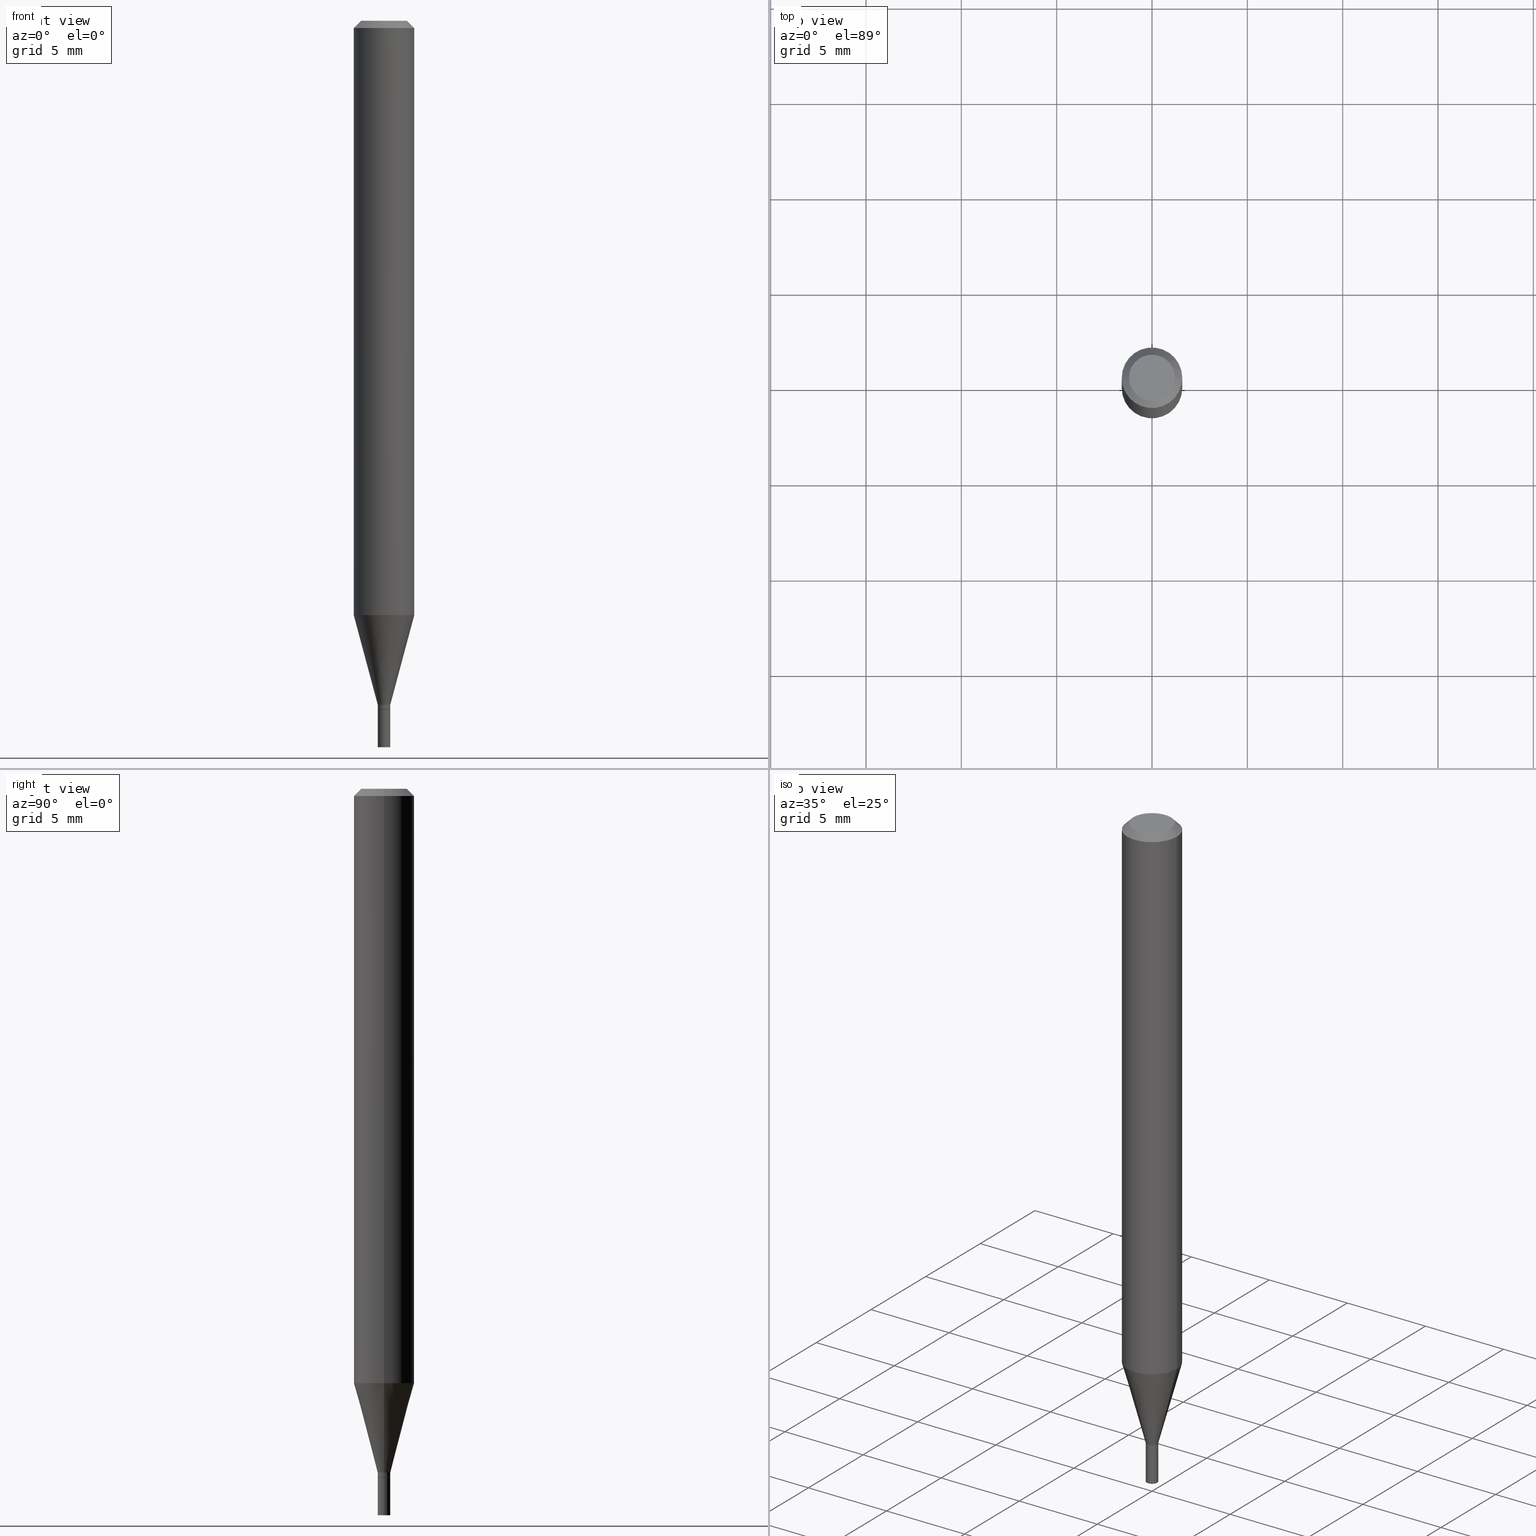
[diagram: canonical four-view strip — front | top / right | iso, engineering-drawing reading convention]
A machine part, canonical four-view strip (front | top / right | iso — engineering-drawing reading convention). The complete STEP part file that produces these views, byte-faithful:
ISO-10303-21;
HEADER;
FILE_DESCRIPTION (( 'STEP AP203' ),
    '1' );
FILE_NAME ('00832.STEP',
    '2024-03-19T22:36:43',
    ( '' ),
    ( '' ),
    'SwSTEP 2.0',
    'SolidWorks 2023',
    '' );
FILE_SCHEMA (( 'CONFIG_CONTROL_DESIGN' ));
ENDSEC;

DATA;
#1 = CYLINDRICAL_SURFACE ( 'NONE', #51, 0.01299999999999999767 ) ;
#2 = DIRECTION ( 'NONE',  ( -2.445468806185136597E-29, 3.491481338843145583E-15, 1.000000000000000000 ) ) ;
#3 = ADVANCED_FACE ( 'NONE', ( #278 ), #452, .T. ) ;
#4 = AXIS2_PLACEMENT_3D ( 'NONE', #72, #174, #390 ) ;
#5 = DATE_AND_TIME ( #40, #186 ) ;
#6 = DIRECTION ( 'NONE',  ( 0.7071067811865411334, -7.319954787623233957E-15, -0.7071067811865537900 ) ) ;
#7 = CARTESIAN_POINT ( 'NONE',  ( 0.01299999999999999767, -5.055664978644874706E-15, -1.421999999999999931 ) ) ;
#8 = SHAPE_DEFINITION_REPRESENTATION ( #43, #314 ) ;
#9 = DIRECTION ( 'NONE',  ( -2.438088387897960049E-29, 3.491481338843145188E-15, 1.000000000000000000 ) ) ;
#10 =( GEOMETRIC_REPRESENTATION_CONTEXT ( 3 ) GLOBAL_UNCERTAINTY_ASSIGNED_CONTEXT ( ( #281 ) ) GLOBAL_UNIT_ASSIGNED_CONTEXT ( ( #202, #99, #417 ) ) REPRESENTATION_CONTEXT ( 'NONE', 'WORKASPACE' ) );
#11 = CARTESIAN_POINT ( 'NONE',  ( -6.641529175093299695E-45, 9.482343474417248123E-31, 2.715851111367844914E-16 ) ) ;
#12 = ORIENTED_EDGE ( 'NONE', *, *, #29, .T. ) ;
#13 = DIRECTION ( 'NONE',  ( -2.445468806185136877E-29, 3.491481338843145188E-15, 1.000000000000000000 ) ) ;
#14 = VERTEX_POINT ( 'NONE', #245 ) ;
#15 = EDGE_CURVE ( 'NONE', #169, #306, #198, .T. ) ;
#16 = DIRECTION ( 'NONE',  ( -2.445468806185136597E-29, 3.491481338843145583E-15, 1.000000000000000000 ) ) ;
#17 = ORIENTED_EDGE ( 'NONE', *, *, #89, .T. ) ;
#18 = DIMENSIONAL_EXPONENTS ( 1.000000000000000000, 0.000000000000000000, 0.000000000000000000, 0.000000000000000000, 0.000000000000000000, 0.000000000000000000, 0.000000000000000000 ) ;
#19 = ADVANCED_FACE ( 'NONE', ( #107 ), #319, .T. ) ;
#20 = CONICAL_SURFACE ( 'NONE', #436, 0.06250000000000000000, 0.7853981633974393972 ) ;
#21 = LINE ( 'NONE', #90, #152 ) ;
#22 = ORIENTED_EDGE ( 'NONE', *, *, #433, .F. ) ;
#23 = DIRECTION ( 'NONE',  ( -2.445468806185136597E-29, 3.491481338843145583E-15, 1.000000000000000000 ) ) ;
#24 = EDGE_LOOP ( 'NONE', ( #344, #60, #12, #349 ) ) ;
#25 = DIRECTION ( 'NONE',  ( -2.445468806185136597E-29, 3.491481338843145583E-15, 1.000000000000000000 ) ) ;
#26 = ADVANCED_FACE ( 'NONE', ( #110 ), #65, .F. ) ;
#27 = DATE_AND_TIME ( #345, #431 ) ;
#28 = VECTOR ( 'NONE', #372, 39.37007874015748854 ) ;
#29 = EDGE_CURVE ( 'NONE', #460, #62, #248, .T. ) ;
#30 = DIRECTION ( 'NONE',  ( -2.445468806185136597E-29, 3.491481338843145583E-15, 1.000000000000000000 ) ) ;
#31 = CARTESIAN_POINT ( 'NONE',  ( 3.453001954333413314E-29, -4.929971650446521716E-15, -1.412000000000000144 ) ) ;
#32 = CARTESIAN_POINT ( 'NONE',  ( 0.06250000000000000000, -4.364351673553916694E-16, 3.047610484872459871E-30 ) ) ;
#33 = DIRECTION ( 'NONE',  ( -2.445468806185136597E-29, 3.491481338843145583E-15, 1.000000000000000000 ) ) ;
#34 = DIRECTION ( 'NONE',  ( -2.445468806185136877E-29, 3.491481338843145188E-15, 1.000000000000000000 ) ) ;
#35 = CALENDAR_DATE ( 2024, 19, 3 ) ;
#36 = AXIS2_PLACEMENT_3D ( 'NONE', #155, #257, #326 ) ;
#37 = DIRECTION ( 'NONE',  ( 1.000000000000000000, -6.982962677686295110E-15, 0.000000000000000000 ) ) ;
#38 = AXIS2_PLACEMENT_3D ( 'NONE', #357, #39, #182 ) ;
#39 = DIRECTION ( 'NONE',  ( -2.445468806185136597E-29, 3.491481338843145583E-15, 1.000000000000000000 ) ) ;
#40 = CALENDAR_DATE ( 2024, 19, 3 ) ;
#41 = DIRECTION ( 'NONE',  ( 1.000000000000000000, -6.982962677686266711E-15, 0.000000000000000000 ) ) ;
#42 = EDGE_CURVE ( 'NONE', #112, #169, #309, .T. ) ;
#43 = PRODUCT_DEFINITION_SHAPE ( 'NONE', 'NONE',  #399 ) ;
#44 = CARTESIAN_POINT ( 'NONE',  ( 0.000000000000000000, 0.000000000000000000, 0.000000000000000000 ) ) ;
#45 = VECTOR ( 'NONE', #386, 39.37007874015748143 ) ;
#46 = VECTOR ( 'NONE', #396, 39.37007874015748143 ) ;
#47 = COORDINATED_UNIVERSAL_TIME_OFFSET ( 5, 0, .BEHIND. ) ;
#48 = CARTESIAN_POINT ( 'NONE',  ( 3.477456642395264859E-29, -4.964886463834953365E-15, -1.421999999999999931 ) ) ;
#49 = FACE_OUTER_BOUND ( 'NONE', #354, .T. ) ;
#50 = DIRECTION ( 'NONE',  ( -2.445468806185136597E-29, 3.491481338843145583E-15, 1.000000000000000000 ) ) ;
#51 = AXIS2_PLACEMENT_3D ( 'NONE', #44, #435, #118 ) ;
#52 = DIRECTION ( 'NONE',  ( 1.000000000000000000, -6.982962677686299843E-15, 0.000000000000000000 ) ) ;
#53 = EDGE_LOOP ( 'NONE', ( #405, #394, #203, #260 ) ) ;
#54 = DIRECTION ( 'NONE',  ( -2.445468806185136597E-29, 3.491481338843145583E-15, 1.000000000000000000 ) ) ;
#55 = EDGE_CURVE ( 'NONE', #201, #75, #383, .T. ) ;
#56 = ORIENTED_EDGE ( 'NONE', *, *, #282, .F. ) ;
#57 = DIRECTION ( 'NONE',  ( -2.445468806185136597E-29, 3.491481338843145583E-15, 1.000000000000000000 ) ) ;
#58 = AXIS2_PLACEMENT_3D ( 'NONE', #335, #16, #303 ) ;
#59 = DIRECTION ( 'NONE',  ( -1.000000000000000000, 6.982962677686265922E-15, -4.876176775795935793E-29 ) ) ;
#60 = ORIENTED_EDGE ( 'NONE', *, *, #455, .T. ) ;
#61 = PERSON_AND_ORGANIZATION_ROLE ( 'creator' ) ;
#62 = VERTEX_POINT ( 'NONE', #177 ) ;
#63 = EDGE_CURVE ( 'NONE', #75, #87, #207, .T. ) ;
#64 = COORDINATED_UNIVERSAL_TIME_OFFSET ( 5, 0, .BEHIND. ) ;
#65 = PLANE ( 'NONE',  #423 ) ;
#66 = DATE_TIME_ROLE ( 'creation_date' ) ;
#67 = LOCAL_TIME ( 18, 36, 43.00000000000000000, #139 ) ;
#68 = CYLINDRICAL_SURFACE ( 'NONE', #400, 0.01299999999999992134 ) ;
#69 = MECHANICAL_CONTEXT ( 'NONE', #358, 'mechanical' ) ;
#70 = CARTESIAN_POINT ( 'NONE',  ( 3.477456642395264859E-29, -4.964886463834953365E-15, -1.421999999999999931 ) ) ;
#71 = PRODUCT_RELATED_PRODUCT_CATEGORY ( 'detail', '', ( #415 ) ) ;
#72 = CARTESIAN_POINT ( 'NONE',  ( 0.000000000000000000, 0.000000000000000000, 0.000000000000000000 ) ) ;
#73 = ORIENTED_EDGE ( 'NONE', *, *, #215, .F. ) ;
#74 = MANIFOLD_SOLID_BREP ( 'Body-Move/Copy2[2]', #329 ) ;
#75 = VERTEX_POINT ( 'NONE', #283 ) ;
#76 = AXIS2_PLACEMENT_3D ( 'NONE', #150, #9, #79 ) ;
#77 = ADVANCED_FACE ( 'NONE', ( #422 ), #68, .T. ) ;
#78 = DIRECTION ( 'NONE',  ( 1.000000000000000000, -6.982962677686258822E-15, 0.000000000000000000 ) ) ;
#79 = DIRECTION ( 'NONE',  ( 1.000000000000000000, -6.982962677686265922E-15, 4.876176775795935793E-29 ) ) ;
#80 = CARTESIAN_POINT ( 'NONE',  ( -0.01299999999999992134, -4.870770167516720333E-15, -1.421500000000000208 ) ) ;
#81 = AXIS2_PLACEMENT_3D ( 'NONE', #206, #458, #391 ) ;
#82 = AXIS2_PLACEMENT_3D ( 'NONE', #132, #261, #408 ) ;
#83 = APPROVAL_PERSON_ORGANIZATION ( #119, #250, #218 ) ;
#84 = CARTESIAN_POINT ( 'NONE',  ( -0.01249999999999999896, -4.876068621864941157E-15, -1.421999999999999931 ) ) ;
#85 = DIRECTION ( 'NONE',  ( -2.438088387897960049E-29, 3.491481338843145188E-15, 1.000000000000000000 ) ) ;
#86 = CARTESIAN_POINT ( 'NONE',  ( -0.01299999999999999767, -5.008683680401023059E-15, -1.500000000000000222 ) ) ;
#87 = VERTEX_POINT ( 'NONE', #392 ) ;
#88 = APPROVAL_PERSON_ORGANIZATION ( #384, #385, #277 ) ;
#89 = EDGE_CURVE ( 'NONE', #306, #169, #337, .T. ) ;
#90 = CARTESIAN_POINT ( 'NONE',  ( -0.01299999999999999767, 9.237055564881300760E-17, -6.394615617331376928E-31 ) ) ;
#91 = ORIENTED_EDGE ( 'NONE', *, *, #15, .T. ) ;
#92 = CARTESIAN_POINT ( 'NONE',  ( 3.477456642395264859E-29, -4.964886463834953365E-15, -1.421999999999999931 ) ) ;
#93 = ORIENTED_EDGE ( 'NONE', *, *, #282, .T. ) ;
#94 = DIRECTION ( 'NONE',  ( -2.445468806185136597E-29, 3.491481338843145583E-15, 1.000000000000000000 ) ) ;
#95 = VERTEX_POINT ( 'NONE', #80 ) ;
#96 = CIRCLE ( 'NONE', #388, 0.06250000000000000000 ) ;
#97 = VECTOR ( 'NONE', #461, 39.37007874015748143 ) ;
#98 = APPROVAL_PERSON_ORGANIZATION ( #176, #300, #280 ) ;
#99 =( NAMED_UNIT ( * ) PLANE_ANGLE_UNIT ( ) SI_UNIT ( $, .RADIAN. ) );
#100 = EDGE_LOOP ( 'NONE', ( #269, #424, #230, #195 ) ) ;
#101 = APPROVAL_STATUS ( 'not_yet_approved' ) ;
#102 = EDGE_LOOP ( 'NONE', ( #144, #147, #297, #131 ) ) ;
#103 = ORIENTED_EDGE ( 'NONE', *, *, #323, .T. ) ;
#104 = AXIS2_PLACEMENT_3D ( 'NONE', #420, #284, #316 ) ;
#105 = CIRCLE ( 'NONE', #330, 0.01249999999999999896 ) ;
#106 = CC_DESIGN_PERSON_AND_ORGANIZATION_ASSIGNMENT ( #108, #210, ( #363 ) ) ;
#107 = FACE_OUTER_BOUND ( 'NONE', #53, .T. ) ;
#108 = PERSON_AND_ORGANIZATION ( #292, #115 ) ;
#109 = DESIGN_CONTEXT ( 'detailed design', #381, 'design' ) ;
#110 = FACE_OUTER_BOUND ( 'NONE', #343, .T. ) ;
#111 = APPROVAL_DATE_TIME ( #188, #250 ) ;
#112 = VERTEX_POINT ( 'NONE', #217 ) ;
#113 = EDGE_CURVE ( 'NONE', #112, #375, #262, .T. ) ;
#114 = CARTESIAN_POINT ( 'NONE',  ( -0.01299999999999992134, -4.837601094797709398E-15, -1.412000000000000144 ) ) ;
#115 = ORGANIZATION ( 'UNSPECIFIED', 'UNSPECIFIED', '' ) ;
#116 = EDGE_CURVE ( 'NONE', #14, #460, #403, .T. ) ;
#117 = DIRECTION ( 'NONE',  ( 0.2588190451025207950, 1.565188264969625912E-15, 0.9659258262890682012 ) ) ;
#118 = DIRECTION ( 'NONE',  ( 1.000000000000000000, -6.982962677686267499E-15, 4.876176775795935793E-29 ) ) ;
#119 = PERSON_AND_ORGANIZATION ( #292, #115 ) ;
#120 = LINE ( 'NONE', #84, #46 ) ;
#121 = CIRCLE ( 'NONE', #82, 0.06250000000000000000 ) ;
#122 = DIRECTION ( 'NONE',  ( -2.445468806185136597E-29, 3.491481338843145583E-15, 1.000000000000000000 ) ) ;
#123 = CARTESIAN_POINT ( 'NONE',  ( 3.668203209277705088E-31, -5.237222008264718399E-17, -0.01499999999999999944 ) ) ;
#124 = ORIENTED_EDGE ( 'NONE', *, *, #447, .F. ) ;
#125 = ADVANCED_FACE ( 'NONE', ( #49 ), #223, .T. ) ;
#126 = FACE_OUTER_BOUND ( 'NONE', #334, .T. ) ;
#127 = ORIENTED_EDGE ( 'NONE', *, *, #116, .F. ) ;
#128 = AXIS2_PLACEMENT_3D ( 'NONE', #322, #254, #291 ) ;
#129 = AXIS2_PLACEMENT_3D ( 'NONE', #445, #234, #450 ) ;
#130 = DIRECTION ( 'NONE',  ( -1.000000000000000000, 6.982962677686266711E-15, 0.000000000000000000 ) ) ;
#131 = ORIENTED_EDGE ( 'NONE', *, *, #369, .F. ) ;
#132 = CARTESIAN_POINT ( 'NONE',  ( 3.001234569599529890E-29, -4.284967555809580668E-15, -1.227263485025340550 ) ) ;
#133 = ORIENTED_EDGE ( 'NONE', *, *, #42, .F. ) ;
#134 = CARTESIAN_POINT ( 'NONE',  ( 3.477456642395264859E-29, -4.964886463834953365E-15, -1.421999999999999931 ) ) ;
#135 = CC_DESIGN_PERSON_AND_ORGANIZATION_ASSIGNMENT ( #426, #348, ( #356 ) ) ;
#136 = EDGE_LOOP ( 'NONE', ( #466, #93, #271, #170 ) ) ;
#137 = CLOSED_SHELL ( 'NONE', ( #235, #253, #393, #26 ) ) ;
#138 = AXIS2_PLACEMENT_3D ( 'NONE', #320, #185, #78 ) ;
#139 = COORDINATED_UNIVERSAL_TIME_OFFSET ( 5, 0, .BEHIND. ) ;
#140 = CARTESIAN_POINT ( 'NONE',  ( 0.01299999999999992134, -9.077851480992092194E-17, 6.339029808534677610E-31 ) ) ;
#141 = ORIENTED_EDGE ( 'NONE', *, *, #55, .F. ) ;
#142 = CC_DESIGN_DATE_AND_TIME_ASSIGNMENT ( #453, #66, ( #399 ) ) ;
#143 = PERSON_AND_ORGANIZATION ( #292, #115 ) ;
#144 = ORIENTED_EDGE ( 'NONE', *, *, #429, .F. ) ;
#145 = CIRCLE ( 'NONE', #318, 0.01299999999999992134 ) ;
#146 = CALENDAR_DATE ( 2024, 19, 3 ) ;
#147 = ORIENTED_EDGE ( 'NONE', *, *, #215, .T. ) ;
#148 = APPLICATION_PROTOCOL_DEFINITION ( 'international standard', 'config_control_design', 1994, #358 ) ;
#149 = CARTESIAN_POINT ( 'NONE',  ( 3.477456642395264859E-29, -4.964886463834953365E-15, -1.421999999999999931 ) ) ;
#150 = CARTESIAN_POINT ( 'NONE',  ( 3.584916967085606921E-29, -5.356492647442320375E-15, -1.500000000000000222 ) ) ;
#151 = DIRECTION ( 'NONE',  ( 1.000000000000000000, -6.982962677686267499E-15, 4.852736867747366768E-29 ) ) ;
#152 = VECTOR ( 'NONE', #229, 39.37007874015748143 ) ;
#153 = CARTESIAN_POINT ( 'NONE',  ( -0.01299999999999992134, -4.339239720378613725E-15, -1.412000000000000144 ) ) ;
#154 = EDGE_CURVE ( 'NONE', #62, #201, #402, .T. ) ;
#155 = CARTESIAN_POINT ( 'NONE',  ( 0.000000000000000000, 0.000000000000000000, 0.000000000000000000 ) ) ;
#156 = CARTESIAN_POINT ( 'NONE',  ( -0.04749999999999999362, 3.578768372314215436E-16, 2.715851111367820755E-16 ) ) ;
#157 = AXIS2_PLACEMENT_3D ( 'NONE', #463, #25, #211 ) ;
#158 = FACE_OUTER_BOUND ( 'NONE', #380, .T. ) ;
#159 = ORIENTED_EDGE ( 'NONE', *, *, #15, .F. ) ;
#160 = DIRECTION ( 'NONE',  ( 1.000000000000000000, -6.982962677686270655E-15, 0.000000000000000000 ) ) ;
#161 = ORIENTED_EDGE ( 'NONE', *, *, #421, .F. ) ;
#162 = CARTESIAN_POINT ( 'NONE',  ( 3.453001954333413314E-29, -4.929971650446521716E-15, -1.412000000000000144 ) ) ;
#163 = VERTEX_POINT ( 'NONE', #153 ) ;
#164 = VECTOR ( 'NONE', #13, 39.37007874015748143 ) ;
#165 = ADVANCED_FACE ( 'NONE', ( #328 ), #416, .T. ) ;
#166 = LINE ( 'NONE', #270, #28 ) ;
#167 = EDGE_LOOP ( 'NONE', ( #411, #312, #22, #127 ) ) ;
#168 = PLANE ( 'NONE',  #347 ) ;
#169 = VERTEX_POINT ( 'NONE', #7 ) ;
#170 = ORIENTED_EDGE ( 'NONE', *, *, #154, .F. ) ;
#171 = APPROVAL_DATE_TIME ( #27, #300 ) ;
#172 = ORIENTED_EDGE ( 'NONE', *, *, #89, .F. ) ;
#173 = EDGE_CURVE ( 'NONE', #87, #75, #96, .T. ) ;
#174 = DIRECTION ( 'NONE',  ( 0.000000000000000000, 0.000000000000000000, 1.000000000000000000 ) ) ;
#175 = CARTESIAN_POINT ( 'NONE',  ( 0.000000000000000000, 0.000000000000000000, 0.000000000000000000 ) ) ;
#176 = PERSON_AND_ORGANIZATION ( #292, #115 ) ;
#177 = CARTESIAN_POINT ( 'NONE',  ( 0.01299999999999992134, -5.020750165256443057E-15, -1.412000000000000144 ) ) ;
#178 = VECTOR ( 'NONE', #252, 39.37007874015748854 ) ;
#179 =( LENGTH_UNIT ( ) NAMED_UNIT ( * ) SI_UNIT ( $, .METRE. ) );
#180 = ORIENTED_EDGE ( 'NONE', *, *, #181, .F. ) ;
#181 = EDGE_CURVE ( 'NONE', #242, #14, #231, .T. ) ;
#182 = DIRECTION ( 'NONE',  ( 1.000000000000000000, -6.982962677686295110E-15, 0.000000000000000000 ) ) ;
#183 = CARTESIAN_POINT ( 'NONE',  ( 0.06250000000000000000, -4.811533449433679005E-16, -0.01499999999999999944 ) ) ;
#184 = CONICAL_SURFACE ( 'NONE', #362, 0.01249999999999999896, 0.7853981633974718157 ) ;
#185 = DIRECTION ( 'NONE',  ( -2.445468806185136597E-29, 3.491481338843145583E-15, 1.000000000000000000 ) ) ;
#186 = LOCAL_TIME ( 18, 36, 43.00000000000000000, #47 ) ;
#187 = CC_DESIGN_PERSON_AND_ORGANIZATION_ASSIGNMENT ( #353, #61, ( #399 ) ) ;
#188 = DATE_AND_TIME ( #364, #224 ) ;
#189 = DIRECTION ( 'NONE',  ( 1.000000000000000000, -6.982962677686258822E-15, 0.000000000000000000 ) ) ;
#190 = DIRECTION ( 'NONE',  ( -2.445468806185136597E-29, 3.491481338843145583E-15, 1.000000000000000000 ) ) ;
#191 = DIRECTION ( 'NONE',  ( -2.445468806185136597E-29, 3.491481338843145583E-15, 1.000000000000000000 ) ) ;
#192 = CARTESIAN_POINT ( 'NONE',  ( -0.06250000000000000000, 4.440892098500626162E-16, -3.074334431409316114E-30 ) ) ;
#193 = VERTEX_POINT ( 'NONE', #365 ) ;
#194 = DIRECTION ( 'NONE',  ( 1.000000000000000000, -6.982962677686265922E-15, 4.876176775795935793E-29 ) ) ;
#195 = ORIENTED_EDGE ( 'NONE', *, *, #173, .F. ) ;
#196 = CYLINDRICAL_SURFACE ( 'NONE', #324, 0.01299999999999999767 ) ;
#197 = ORIENTED_EDGE ( 'NONE', *, *, #228, .T. ) ;
#198 = CIRCLE ( 'NONE', #104, 0.01299999999999999767 ) ;
#199 = CIRCLE ( 'NONE', #138, 0.01299999999999999767 ) ;
#200 = DIRECTION ( 'NONE',  ( 1.000000000000000000, -6.982962677686267499E-15, 4.876176775795935793E-29 ) ) ;
#201 = VERTEX_POINT ( 'NONE', #286 ) ;
#202 =( CONVERSION_BASED_UNIT ( 'INCH', #382 ) LENGTH_UNIT ( ) NAMED_UNIT ( #18 ) );
#203 = ORIENTED_EDGE ( 'NONE', *, *, #406, .F. ) ;
#204 = PERSON_AND_ORGANIZATION_ROLE ( 'design_owner' ) ;
#205 = EDGE_CURVE ( 'NONE', #375, #112, #199, .T. ) ;
#206 = CARTESIAN_POINT ( 'NONE',  ( 3.668203209277705088E-31, -5.237222008264718399E-17, -0.01499999999999999944 ) ) ;
#207 = CIRCLE ( 'NONE', #81, 0.06250000000000000000 ) ;
#208 = CC_DESIGN_APPROVAL ( #385, ( #399 ) ) ;
#209 = CC_DESIGN_SECURITY_CLASSIFICATION ( #356, ( #363 ) ) ;
#210 = PERSON_AND_ORGANIZATION_ROLE ( 'design_supplier' ) ;
#211 = DIRECTION ( 'NONE',  ( 1.000000000000000000, -6.982962677686266711E-15, 4.876176775795935232E-29 ) ) ;
#212 = CARTESIAN_POINT ( 'NONE',  ( 9.077851480995622346E-17, 0.01299999999999503462, -1.421999999999999931 ) ) ;
#213 = APPROVAL_STATUS ( 'not_yet_approved' ) ;
#214 = DIRECTION ( 'NONE',  ( 2.438088387897960049E-29, -3.491481338843145188E-15, -1.000000000000000000 ) ) ;
#215 = EDGE_CURVE ( 'NONE', #193, #75, #432, .T. ) ;
#216 = CARTESIAN_POINT ( 'NONE',  ( 0.01299999999999992134, -5.020750165256443057E-15, -1.412000000000000144 ) ) ;
#217 = CARTESIAN_POINT ( 'NONE',  ( 0.01299999999999999767, -5.328000523074639518E-15, -1.500000000000000222 ) ) ;
#218 = APPROVAL_ROLE ( '' ) ;
#219 = LINE ( 'NONE', #114, #178 ) ;
#220 = CC_DESIGN_DATE_AND_TIME_ASSIGNMENT ( #5, #221, ( #356 ) ) ;
#221 = DATE_TIME_ROLE ( 'classification_date' ) ;
#222 = AXIS2_PLACEMENT_3D ( 'NONE', #162, #191, #370 ) ;
#223 = CYLINDRICAL_SURFACE ( 'NONE', #36, 0.06250000000000000000 ) ;
#224 = LOCAL_TIME ( 18, 36, 43.00000000000000000, #401 ) ;
#225 = DIRECTION ( 'NONE',  ( -2.445468806185136597E-29, 3.491481338843145583E-15, 1.000000000000000000 ) ) ;
#226 = MANIFOLD_SOLID_BREP ( 'Body-Move/Copy2[1]', #137 ) ;
#227 = DIRECTION ( 'NONE',  ( 1.000000000000000000, -6.982962677686299843E-15, 0.000000000000000000 ) ) ;
#228 = EDGE_CURVE ( 'NONE', #304, #193, #387, .T. ) ;
#229 = DIRECTION ( 'NONE',  ( -2.445468806185136877E-29, 3.491481338843145188E-15, 1.000000000000000000 ) ) ;
#230 = ORIENTED_EDGE ( 'NONE', *, *, #55, .T. ) ;
#231 = CIRCLE ( 'NONE', #38, 0.01249999999999999896 ) ;
#232 = DIRECTION ( 'NONE',  ( -2.445468806185136597E-29, 3.491481338843145583E-15, 1.000000000000000000 ) ) ;
#233 = EDGE_LOOP ( 'NONE', ( #439, #340 ) ) ;
#234 = DIRECTION ( 'NONE',  ( -2.445468806185136597E-29, 3.491481338843145583E-15, 1.000000000000000000 ) ) ;
#235 = ADVANCED_FACE ( 'NONE', ( #430 ), #1, .T. ) ;
#236 = ORIENTED_EDGE ( 'NONE', *, *, #287, .F. ) ;
#237 = CARTESIAN_POINT ( 'NONE',  ( 3.453001954333413314E-29, -4.929971650446521716E-15, -1.412000000000000144 ) ) ;
#238 = EDGE_LOOP ( 'NONE', ( #299, #414, #159, #133 ) ) ;
#239 = VECTOR ( 'NONE', #244, 39.37007874015748143 ) ;
#240 = CIRCLE ( 'NONE', #129, 0.01299999999999992134 ) ;
#241 = DIRECTION ( 'NONE',  ( 1.000000000000000000, -6.982962677686299843E-15, 0.000000000000000000 ) ) ;
#242 = VERTEX_POINT ( 'NONE', #325 ) ;
#243 = DATE_AND_TIME ( #146, #407 ) ;
#244 = DIRECTION ( 'NONE',  ( -2.445468806185136877E-29, 3.491481338843145188E-15, 1.000000000000000000 ) ) ;
#245 = CARTESIAN_POINT ( 'NONE',  ( 0.01249999999999999896, -5.052173497306032488E-15, -1.421999999999999931 ) ) ;
#246 = VECTOR ( 'NONE', #34, 39.37007874015748143 ) ;
#247 = VECTOR ( 'NONE', #6, 39.37007874015748854 ) ;
#248 = LINE ( 'NONE', #140, #246 ) ;
#249 = DIRECTION ( 'NONE',  ( 1.000000000000000000, -6.982962677686266711E-15, 4.876176775795935232E-29 ) ) ;
#250 = APPROVAL ( #285, 'UNSPECIFIED' ) ;
#251 = ORIENTED_EDGE ( 'NONE', *, *, #154, .T. ) ;
#252 = DIRECTION ( 'NONE',  ( -0.2588190451025207950, 5.211531920934546309E-15, 0.9659258262890682012 ) ) ;
#253 = ADVANCED_FACE ( 'NONE', ( #437 ), #397, .F. ) ;
#254 = DIRECTION ( 'NONE',  ( 2.445468806185136597E-29, -3.491481338843145583E-15, -1.000000000000000000 ) ) ;
#255 = CARTESIAN_POINT ( 'NONE',  ( 0.01249999999999999896, -5.052173497306032488E-15, -1.421999999999999931 ) ) ;
#256 = AXIS2_PLACEMENT_3D ( 'NONE', #237, #57, #227 ) ;
#257 = DIRECTION ( 'NONE',  ( -2.445468806185136597E-29, 3.491481338843145583E-15, 1.000000000000000000 ) ) ;
#258 = DIRECTION ( 'NONE',  ( 0.7071067811865642261, -2.468850131082431399E-15, 0.7071067811865309194 ) ) ;
#259 = CYLINDRICAL_SURFACE ( 'NONE', #294, 0.06250000000000000000 ) ;
#260 = ORIENTED_EDGE ( 'NONE', *, *, #29, .F. ) ;
#261 = DIRECTION ( 'NONE',  ( -2.445468806185136597E-29, 3.491481338843145583E-15, 1.000000000000000000 ) ) ;
#262 = CIRCLE ( 'NONE', #462, 0.01299999999999999767 ) ;
#263 = ORIENTED_EDGE ( 'NONE', *, *, #228, .F. ) ;
#264 = CIRCLE ( 'NONE', #425, 0.06250000000000000000 ) ;
#265 = CC_DESIGN_PERSON_AND_ORGANIZATION_ASSIGNMENT ( #310, #457, ( #363 ) ) ;
#266 = FACE_OUTER_BOUND ( 'NONE', #100, .T. ) ;
#267 = EDGE_LOOP ( 'NONE', ( #56, #103, #251, #161 ) ) ;
#268 = DIRECTION ( 'NONE',  ( 2.438088387897960049E-29, -3.491481338843145188E-15, -1.000000000000000000 ) ) ;
#269 = ORIENTED_EDGE ( 'NONE', *, *, #321, .F. ) ;
#270 = CARTESIAN_POINT ( 'NONE',  ( -0.06250000000000000000, 3.840629472727444916E-16, -0.01499999999999999944 ) ) ;
#271 = ORIENTED_EDGE ( 'NONE', *, *, #333, .F. ) ;
#272 = AXIS2_PLACEMENT_3D ( 'NONE', #360, #2, #151 ) ;
#273 = CARTESIAN_POINT ( 'NONE',  ( -0.01299999999999992134, 9.237055564881246526E-17, -6.394615617331338392E-31 ) ) ;
#274 = CARTESIAN_POINT ( 'NONE',  ( 0.01299999999999999767, -9.077851480992146428E-17, 6.339029808534715270E-31 ) ) ;
#275 = APPLICATION_PROTOCOL_DEFINITION ( 'international standard', 'config_control_design', 1994, #381 ) ;
#276 = EDGE_LOOP ( 'NONE', ( #236, #442, #454, #377 ) ) ;
#277 = APPROVAL_ROLE ( '' ) ;
#278 = FACE_OUTER_BOUND ( 'NONE', #276, .T. ) ;
#279 = CONICAL_SURFACE ( 'NONE', #256, 0.01299999999999992134, 0.2617993877991495189 ) ;
#280 = APPROVAL_ROLE ( '' ) ;
#281 = UNCERTAINTY_MEASURE_WITH_UNIT (LENGTH_MEASURE( 1.000000000000000082E-05 ), #202, 'distance_accuracy_value', 'NONE');
#282 = EDGE_CURVE ( 'NONE', #163, #346, #219, .T. ) ;
#283 = CARTESIAN_POINT ( 'NONE',  ( 0.06250000000000000000, -4.888073874380388472E-16, -0.01499999999999999944 ) ) ;
#284 = DIRECTION ( 'NONE',  ( -2.445468806185136597E-29, 3.491481338843145583E-15, 1.000000000000000000 ) ) ;
#285 = APPROVAL_STATUS ( 'not_yet_approved' ) ;
#286 = CARTESIAN_POINT ( 'NONE',  ( 0.06249999999999999306, -4.721402723164972337E-15, -1.227263485025340550 ) ) ;
#287 = EDGE_CURVE ( 'NONE', #242, #95, #120, .T. ) ;
#288 = CIRCLE ( 'NONE', #58, 0.01299999999999992134 ) ;
#289 = DIRECTION ( 'NONE',  ( 1.000000000000000000, -6.982962677686258822E-15, 0.000000000000000000 ) ) ;
#290 = DIRECTION ( 'NONE',  ( 1.000000000000000000, -6.982962677686295110E-15, 0.000000000000000000 ) ) ;
#291 = DIRECTION ( 'NONE',  ( -1.000000000000000000, 6.982962677686266711E-15, 0.000000000000000000 ) ) ;
#292 = PERSON ( 'UNSPECIFIED', 'UNSPECIFIED', 'UNSPECIFIED', ('UNSPECIFIED'), ('UNSPECIFIED'), ('UNSPECIFIED') ) ;
#293 = AXIS2_PLACEMENT_3D ( 'NONE', #149, #190, #289 ) ;
#294 = AXIS2_PLACEMENT_3D ( 'NONE', #410, #448, #412 ) ;
#295 = CARTESIAN_POINT ( 'NONE',  ( -0.01299999999999999767, -5.008683680401023059E-15, -1.421999999999999931 ) ) ;
#296 = FACE_OUTER_BOUND ( 'NONE', #373, .T. ) ;
#297 = ORIENTED_EDGE ( 'NONE', *, *, #63, .T. ) ;
#298 = LINE ( 'NONE', #192, #164 ) ;
#299 = ORIENTED_EDGE ( 'NONE', *, *, #113, .T. ) ;
#300 = APPROVAL ( #101, 'UNSPECIFIED' ) ;
#301 = PLANE ( 'NONE',  #464 ) ;
#302 = ORIENTED_EDGE ( 'NONE', *, *, #173, .T. ) ;
#303 = DIRECTION ( 'NONE',  ( 1.000000000000000000, -6.982962677686299843E-15, 0.000000000000000000 ) ) ;
#304 = VERTEX_POINT ( 'NONE', #156 ) ;
#305 = DIRECTION ( 'NONE',  ( 2.445468806185136597E-29, -3.491481338843145583E-15, -1.000000000000000000 ) ) ;
#306 = VERTEX_POINT ( 'NONE', #295 ) ;
#307 = COORDINATED_UNIVERSAL_TIME_OFFSET ( 5, 0, .BEHIND. ) ;
#308 = EDGE_CURVE ( 'NONE', #14, #242, #105, .T. ) ;
#309 = LINE ( 'NONE', #274, #239 ) ;
#310 = PERSON_AND_ORGANIZATION ( #292, #115 ) ;
#311 = DIRECTION ( 'NONE',  ( -1.000000000000000000, 6.982962677686265922E-15, -4.876176775795935793E-29 ) ) ;
#312 = ORIENTED_EDGE ( 'NONE', *, *, #287, .T. ) ;
#313 = ADVANCED_FACE ( 'NONE', ( #434 ), #184, .T. ) ;
#314 = ADVANCED_BREP_SHAPE_REPRESENTATION ( '00832', ( #226, #74, #4 ), #10 ) ;
#315 = LINE ( 'NONE', #273, #97 ) ;
#316 = DIRECTION ( 'NONE',  ( 1.000000000000000000, -6.982962677686258822E-15, 0.000000000000000000 ) ) ;
#317 = VECTOR ( 'NONE', #117, 39.37007874015748854 ) ;
#318 = AXIS2_PLACEMENT_3D ( 'NONE', #331, #54, #52 ) ;
#319 = CYLINDRICAL_SURFACE ( 'NONE', #157, 0.01299999999999992134 ) ;
#320 = CARTESIAN_POINT ( 'NONE',  ( 3.668203209277704895E-29, -5.237222008264718177E-15, -1.500000000000000222 ) ) ;
#321 = EDGE_CURVE ( 'NONE', #346, #87, #298, .T. ) ;
#322 = CARTESIAN_POINT ( 'NONE',  ( 3.668203209277705088E-31, -5.237222008264718399E-17, -0.01499999999999999944 ) ) ;
#323 = EDGE_CURVE ( 'NONE', #163, #62, #395, .T. ) ;
#324 = AXIS2_PLACEMENT_3D ( 'NONE', #438, #50, #200 ) ;
#325 = CARTESIAN_POINT ( 'NONE',  ( -0.01249999999999999896, -4.873419394690830745E-15, -1.421999999999999931 ) ) ;
#326 = DIRECTION ( 'NONE',  ( 1.000000000000000000, -6.982962677686266711E-15, 4.876176775795935793E-29 ) ) ;
#327 = ADVANCED_FACE ( 'NONE', ( #332 ), #279, .T. ) ;
#328 = FACE_OUTER_BOUND ( 'NONE', #102, .T. ) ;
#329 = CLOSED_SHELL ( 'NONE', ( #19, #313, #165, #125, #456, #327, #440, #413, #350, #366, #3, #77 ) ) ;
#330 = AXIS2_PLACEMENT_3D ( 'NONE', #48, #122, #290 ) ;
#331 = CARTESIAN_POINT ( 'NONE',  ( 3.453001954333413314E-29, -4.929971650446521716E-15, -1.412000000000000144 ) ) ;
#332 = FACE_OUTER_BOUND ( 'NONE', #267, .T. ) ;
#333 = EDGE_CURVE ( 'NONE', #201, #346, #264, .T. ) ;
#334 = EDGE_LOOP ( 'NONE', ( #73, #263, #428, #302 ) ) ;
#335 = CARTESIAN_POINT ( 'NONE',  ( 3.476233907992172058E-29, -4.963140723165531861E-15, -1.421500000000000208 ) ) ;
#336 = ORIENTED_EDGE ( 'NONE', *, *, #429, .T. ) ;
#337 = CIRCLE ( 'NONE', #293, 0.01299999999999999767 ) ;
#338 = DIRECTION ( 'NONE',  ( 1.000000000000000000, -6.982962677686267499E-15, 4.852736867747366768E-29 ) ) ;
#339 = CIRCLE ( 'NONE', #444, 0.04749999999999999362 ) ;
#340 = ORIENTED_EDGE ( 'NONE', *, *, #205, .F. ) ;
#341 = CC_DESIGN_APPROVAL ( #300, ( #363 ) ) ;
#342 = DIRECTION ( 'NONE',  ( 1.000000000000000000, -6.982962677686295110E-15, 0.000000000000000000 ) ) ;
#343 = EDGE_LOOP ( 'NONE', ( #91, #17 ) ) ;
#344 = ORIENTED_EDGE ( 'NONE', *, *, #465, .F. ) ;
#345 = CALENDAR_DATE ( 2024, 19, 3 ) ;
#346 = VERTEX_POINT ( 'NONE', #376 ) ;
#347 = AXIS2_PLACEMENT_3D ( 'NONE', #441, #268, #59 ) ;
#348 = PERSON_AND_ORGANIZATION_ROLE ( 'classification_officer' ) ;
#349 = ORIENTED_EDGE ( 'NONE', *, *, #323, .F. ) ;
#350 = ADVANCED_FACE ( 'NONE', ( #158 ), #168, .F. ) ;
#351 = SECURITY_CLASSIFICATION_LEVEL ( 'unclassified' ) ;
#352 = ORIENTED_EDGE ( 'NONE', *, *, #308, .F. ) ;
#353 = PERSON_AND_ORGANIZATION ( #292, #115 ) ;
#354 = EDGE_LOOP ( 'NONE', ( #451, #446, #419, #141 ) ) ;
#355 = CONICAL_SURFACE ( 'NONE', #418, 0.01299999999999992134, 0.2617993877991495189 ) ;
#356 = SECURITY_CLASSIFICATION ( '', '', #351 ) ;
#357 = CARTESIAN_POINT ( 'NONE',  ( 3.477456642395264859E-29, -4.964886463834953365E-15, -1.421999999999999931 ) ) ;
#358 = APPLICATION_CONTEXT ( 'configuration controlled 3d designs of mechanical parts and assemblies' ) ;
#359 = CARTESIAN_POINT ( 'NONE',  ( 3.668203209277704895E-29, -5.237222008264718177E-15, -1.500000000000000222 ) ) ;
#360 = CARTESIAN_POINT ( 'NONE',  ( -6.641529175093299695E-45, 9.482343474417248123E-31, 2.715851111367844914E-16 ) ) ;
#361 = VECTOR ( 'NONE', #258, 39.37007874015748143 ) ;
#362 = AXIS2_PLACEMENT_3D ( 'NONE', #134, #94, #342 ) ;
#363 = PRODUCT_DEFINITION_FORMATION_WITH_SPECIFIED_SOURCE ( 'ANY', '', #415, .NOT_KNOWN. ) ;
#364 = CALENDAR_DATE ( 2024, 19, 3 ) ;
#365 = CARTESIAN_POINT ( 'NONE',  ( 0.04749999999999999362, -4.035134999187573693E-16, 2.715851111367870552E-16 ) ) ;
#366 = ADVANCED_FACE ( 'NONE', ( #296 ), #301, .F. ) ;
#367 = DIRECTION ( 'NONE',  ( -2.445468806185136597E-29, 3.491481338843145583E-15, 1.000000000000000000 ) ) ;
#368 = FACE_OUTER_BOUND ( 'NONE', #409, .T. ) ;
#369 = EDGE_CURVE ( 'NONE', #304, #87, #166, .T. ) ;
#370 = DIRECTION ( 'NONE',  ( 1.000000000000000000, -6.982962677686299843E-15, 0.000000000000000000 ) ) ;
#371 = ORIENTED_EDGE ( 'NONE', *, *, #42, .T. ) ;
#372 = DIRECTION ( 'NONE',  ( -0.7071067811865411334, 2.468850131082190402E-15, -0.7071067811865537900 ) ) ;
#373 = EDGE_LOOP ( 'NONE', ( #352, #180 ) ) ;
#374 = FACE_OUTER_BOUND ( 'NONE', #136, .T. ) ;
#375 = VERTEX_POINT ( 'NONE', #86 ) ;
#376 = CARTESIAN_POINT ( 'NONE',  ( -0.06249999999999999306, -3.840878345959517263E-15, -1.227263485025340550 ) ) ;
#377 = ORIENTED_EDGE ( 'NONE', *, *, #455, .F. ) ;
#378 = CC_DESIGN_PERSON_AND_ORGANIZATION_ASSIGNMENT ( #143, #204, ( #415 ) ) ;
#379 = APPROVAL_DATE_TIME ( #243, #385 ) ;
#380 = EDGE_LOOP ( 'NONE', ( #197, #336 ) ) ;
#381 = APPLICATION_CONTEXT ( 'configuration controlled 3d designs of mechanical parts and assemblies' ) ;
#382 = LENGTH_MEASURE_WITH_UNIT ( LENGTH_MEASURE( 0.02539999999999999897 ), #179 );
#383 = LINE ( 'NONE', #32, #45 ) ;
#384 = PERSON_AND_ORGANIZATION ( #292, #115 ) ;
#385 = APPROVAL ( #213, 'UNSPECIFIED' ) ;
#386 = DIRECTION ( 'NONE',  ( -2.445468806185136877E-29, 3.491481338843145188E-15, 1.000000000000000000 ) ) ;
#387 = CIRCLE ( 'NONE', #272, 0.04749999999999999362 ) ;
#388 = AXIS2_PLACEMENT_3D ( 'NONE', #398, #367, #41 ) ;
#389 = CC_DESIGN_APPROVAL ( #250, ( #356 ) ) ;
#390 = DIRECTION ( 'NONE',  ( 1.000000000000000000, 0.000000000000000000, 0.000000000000000000 ) ) ;
#391 = DIRECTION ( 'NONE',  ( 1.000000000000000000, -6.982962677686266711E-15, 0.000000000000000000 ) ) ;
#392 = CARTESIAN_POINT ( 'NONE',  ( -0.06250000000000000000, -1.724580678096051257E-15, -0.01499999999999999944 ) ) ;
#393 = ADVANCED_FACE ( 'NONE', ( #368 ), #196, .T. ) ;
#394 = ORIENTED_EDGE ( 'NONE', *, *, #465, .T. ) ;
#395 = CIRCLE ( 'NONE', #222, 0.01299999999999992134 ) ;
#396 = DIRECTION ( 'NONE',  ( -0.7071067811865642261, 7.493145998870414114E-15, 0.7071067811865309194 ) ) ;
#397 = PLANE ( 'NONE',  #76 ) ;
#398 = CARTESIAN_POINT ( 'NONE',  ( 3.668203209277705088E-31, -5.237222008264718399E-17, -0.01499999999999999944 ) ) ;
#399 = PRODUCT_DEFINITION ( 'UNKNOWN', '', #363, #109 ) ;
#400 = AXIS2_PLACEMENT_3D ( 'NONE', #175, #427, #249 ) ;
#401 = COORDINATED_UNIVERSAL_TIME_OFFSET ( 5, 0, .BEHIND. ) ;
#402 = LINE ( 'NONE', #216, #317 ) ;
#403 = LINE ( 'NONE', #255, #361 ) ;
#404 = CARTESIAN_POINT ( 'NONE',  ( 3.001234569599529890E-29, -4.284967555809580668E-15, -1.227263485025340550 ) ) ;
#405 = ORIENTED_EDGE ( 'NONE', *, *, #433, .T. ) ;
#406 = EDGE_CURVE ( 'NONE', #62, #163, #145, .T. ) ;
#407 = LOCAL_TIME ( 18, 36, 43.00000000000000000, #307 ) ;
#408 = DIRECTION ( 'NONE',  ( 1.000000000000000000, -6.982962677686270655E-15, 0.000000000000000000 ) ) ;
#409 = EDGE_LOOP ( 'NONE', ( #124, #449, #371, #172 ) ) ;
#410 = CARTESIAN_POINT ( 'NONE',  ( 0.000000000000000000, 0.000000000000000000, 0.000000000000000000 ) ) ;
#411 = ORIENTED_EDGE ( 'NONE', *, *, #308, .T. ) ;
#412 = DIRECTION ( 'NONE',  ( 1.000000000000000000, -6.982962677686266711E-15, 4.876176775795935793E-29 ) ) ;
#413 = ADVANCED_FACE ( 'NONE', ( #126 ), #20, .T. ) ;
#414 = ORIENTED_EDGE ( 'NONE', *, *, #447, .T. ) ;
#415 = PRODUCT ( '00832', '00832', '', ( #69 ) ) ;
#416 = CONICAL_SURFACE ( 'NONE', #128, 0.06250000000000000000, 0.7853981633974393972 ) ;
#417 =( NAMED_UNIT ( * ) SI_UNIT ( $, .STERADIAN. ) SOLID_ANGLE_UNIT ( ) );
#418 = AXIS2_PLACEMENT_3D ( 'NONE', #31, #33, #241 ) ;
#419 = ORIENTED_EDGE ( 'NONE', *, *, #63, .F. ) ;
#420 = CARTESIAN_POINT ( 'NONE',  ( 3.477456642395264859E-29, -4.964886463834953365E-15, -1.421999999999999931 ) ) ;
#421 = EDGE_CURVE ( 'NONE', #346, #201, #121, .T. ) ;
#422 = FACE_OUTER_BOUND ( 'NONE', #24, .T. ) ;
#423 = AXIS2_PLACEMENT_3D ( 'NONE', #212, #214, #311 ) ;
#424 = ORIENTED_EDGE ( 'NONE', *, *, #421, .T. ) ;
#425 = AXIS2_PLACEMENT_3D ( 'NONE', #404, #23, #160 ) ;
#426 = PERSON_AND_ORGANIZATION ( #292, #115 ) ;
#427 = DIRECTION ( 'NONE',  ( -2.445468806185136597E-29, 3.491481338843145583E-15, 1.000000000000000000 ) ) ;
#428 = ORIENTED_EDGE ( 'NONE', *, *, #369, .T. ) ;
#429 = EDGE_CURVE ( 'NONE', #193, #304, #339, .T. ) ;
#430 = FACE_OUTER_BOUND ( 'NONE', #238, .T. ) ;
#431 = LOCAL_TIME ( 18, 36, 43.00000000000000000, #64 ) ;
#432 = LINE ( 'NONE', #183, #247 ) ;
#433 = EDGE_CURVE ( 'NONE', #460, #95, #288, .T. ) ;
#434 = FACE_OUTER_BOUND ( 'NONE', #167, .T. ) ;
#435 = DIRECTION ( 'NONE',  ( -2.445468806185136597E-29, 3.491481338843145583E-15, 1.000000000000000000 ) ) ;
#436 = AXIS2_PLACEMENT_3D ( 'NONE', #123, #305, #130 ) ;
#437 = FACE_OUTER_BOUND ( 'NONE', #233, .T. ) ;
#438 = CARTESIAN_POINT ( 'NONE',  ( 0.000000000000000000, 0.000000000000000000, 0.000000000000000000 ) ) ;
#439 = ORIENTED_EDGE ( 'NONE', *, *, #113, .F. ) ;
#440 = ADVANCED_FACE ( 'NONE', ( #266 ), #259, .T. ) ;
#441 = CARTESIAN_POINT ( 'NONE',  ( 3.316907271900976096E-16, 0.04749999999999999362, -3.005280802665715689E-17 ) ) ;
#442 = ORIENTED_EDGE ( 'NONE', *, *, #181, .T. ) ;
#443 = AXIS2_PLACEMENT_3D ( 'NONE', #70, #30, #37 ) ;
#444 = AXIS2_PLACEMENT_3D ( 'NONE', #11, #232, #338 ) ;
#445 = CARTESIAN_POINT ( 'NONE',  ( 3.476233907992172058E-29, -4.963140723165531861E-15, -1.421500000000000208 ) ) ;
#446 = ORIENTED_EDGE ( 'NONE', *, *, #321, .T. ) ;
#447 = EDGE_CURVE ( 'NONE', #375, #306, #21, .T. ) ;
#448 = DIRECTION ( 'NONE',  ( -2.445468806185136597E-29, 3.491481338843145583E-15, 1.000000000000000000 ) ) ;
#449 = ORIENTED_EDGE ( 'NONE', *, *, #205, .T. ) ;
#450 = DIRECTION ( 'NONE',  ( 1.000000000000000000, -6.982962677686299843E-15, 0.000000000000000000 ) ) ;
#451 = ORIENTED_EDGE ( 'NONE', *, *, #333, .T. ) ;
#452 = CONICAL_SURFACE ( 'NONE', #443, 0.01249999999999999896, 0.7853981633974718157 ) ;
#453 = DATE_AND_TIME ( #35, #67 ) ;
#454 = ORIENTED_EDGE ( 'NONE', *, *, #116, .T. ) ;
#455 = EDGE_CURVE ( 'NONE', #95, #460, #240, .T. ) ;
#456 = ADVANCED_FACE ( 'NONE', ( #374 ), #355, .T. ) ;
#457 = PERSON_AND_ORGANIZATION_ROLE ( 'creator' ) ;
#458 = DIRECTION ( 'NONE',  ( -2.445468806185136597E-29, 3.491481338843145583E-15, 1.000000000000000000 ) ) ;
#459 = CARTESIAN_POINT ( 'NONE',  ( 0.01299999999999992134, -5.053919237975453202E-15, -1.421500000000000208 ) ) ;
#460 = VERTEX_POINT ( 'NONE', #459 ) ;
#461 = DIRECTION ( 'NONE',  ( -2.445468806185136877E-29, 3.491481338843145188E-15, 1.000000000000000000 ) ) ;
#462 = AXIS2_PLACEMENT_3D ( 'NONE', #359, #225, #189 ) ;
#463 = CARTESIAN_POINT ( 'NONE',  ( 0.000000000000000000, 0.000000000000000000, 0.000000000000000000 ) ) ;
#464 = AXIS2_PLACEMENT_3D ( 'NONE', #92, #85, #194 ) ;
#465 = EDGE_CURVE ( 'NONE', #95, #163, #315, .T. ) ;
#466 = ORIENTED_EDGE ( 'NONE', *, *, #406, .T. ) ;
ENDSEC;
END-ISO-10303-21;
